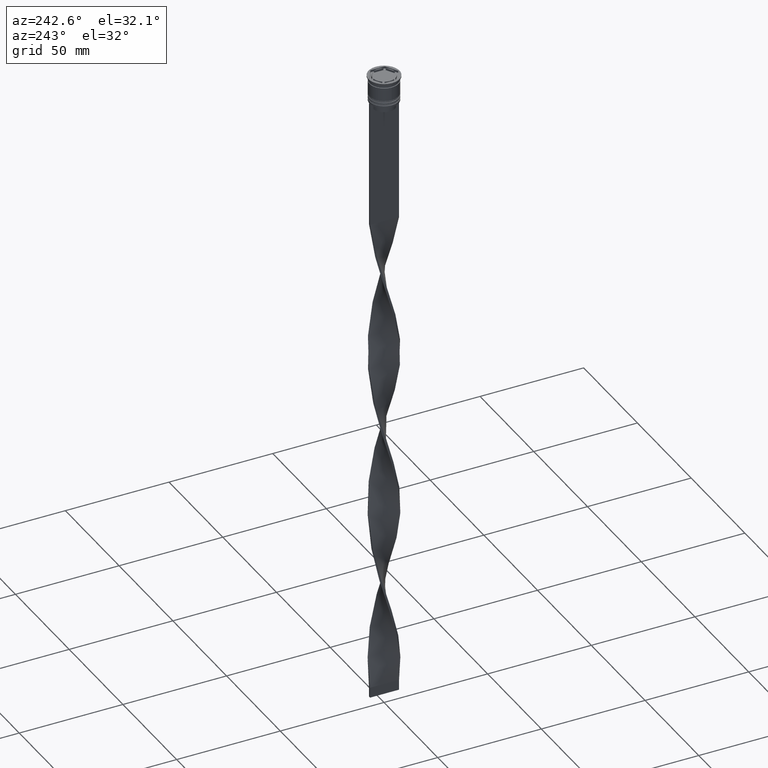
[diagram: clean part render]
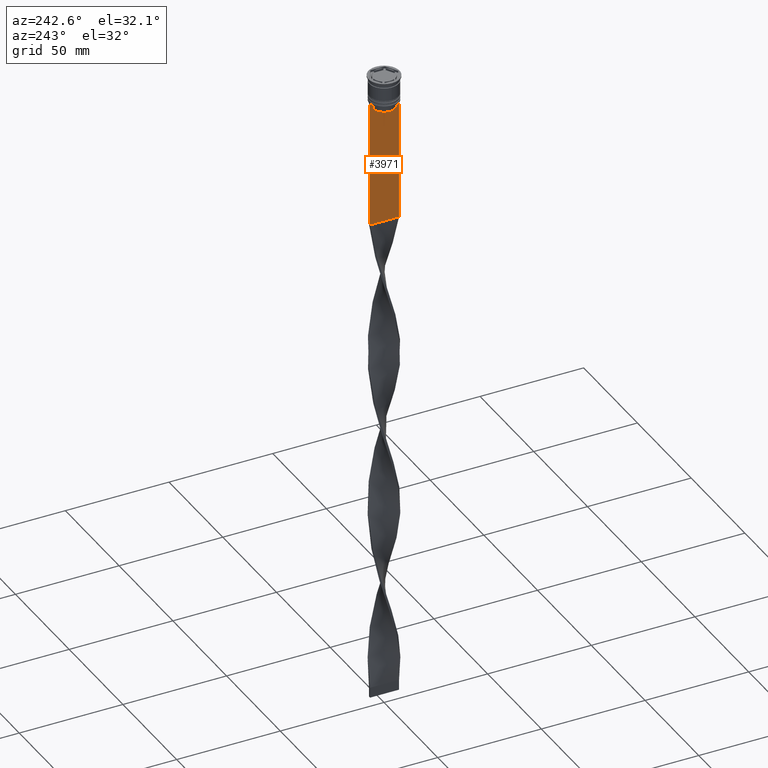
[diagram: same view with one face highlighted and labeled with its STEP entity id]
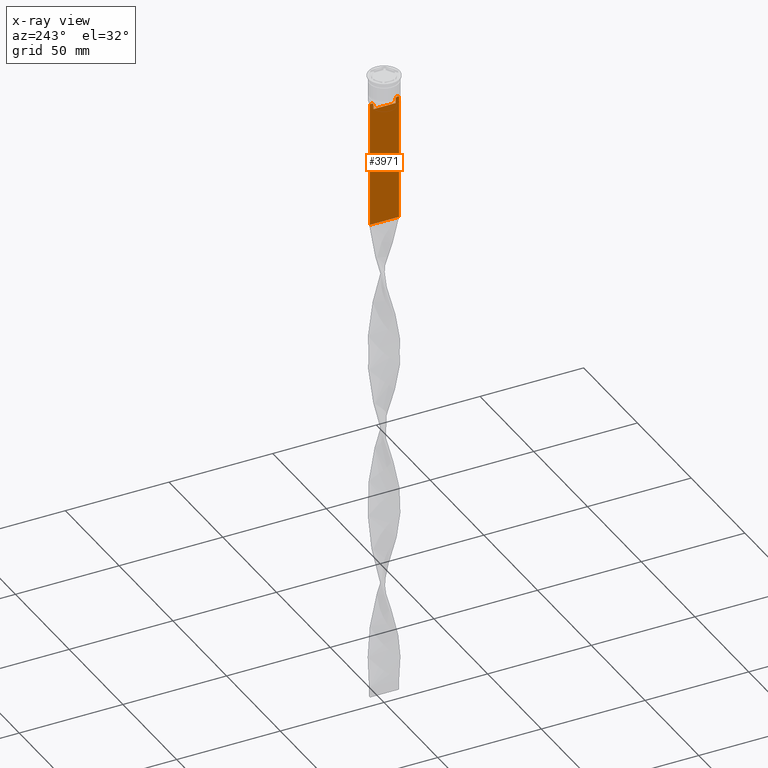
[diagram: x-ray of the same camera — body ghosted, the highlighted face saturated]
A machine part, auxiliary view. The second image highlights one B-rep face of the part: STEP entity #3971.
The next image is the same camera in x-ray: the body ghosted, the highlighted face saturated — about 0% of this face is hidden behind the body in this view.
In plain terms, the highlighted planar face has unit normal (-1, 0, 0).
Its self-contained STEP definition (entity closure, byte-faithful):
#54 = VERTEX_POINT ( 'NONE', #3921 ) ;
#164 = DIRECTION ( 'NONE',  ( 0.000000000000000000, -1.000000000000000000, 0.000000000000000000 ) ) ;
#171 = VERTEX_POINT ( 'NONE', #3525 ) ;
#210 = LINE ( 'NONE', #890, #831 ) ;
#331 = CARTESIAN_POINT ( 'NONE',  ( -0.5000000000000000000, 5.711478846560141598, -12.66669470477064685 ) ) ;
#396 = LINE ( 'NONE', #2629, #1815 ) ;
#433 = B_SPLINE_CURVE_WITH_KNOTS ( 'NONE', 3,
 ( #3967, #2666, #438, #1453 ),
 .UNSPECIFIED., .F., .F.,
 ( 4, 4 ),
 ( 0.02539176325380714666, 0.02610162431828674801 ),
 .UNSPECIFIED. ) ;
#438 = CARTESIAN_POINT ( 'NONE',  ( -0.5000000000000000000, -5.711478856069293286, -12.66669469529570335 ) ) ;
#470 = LINE ( 'NONE', #1128, #2357 ) ;
#507 = DIRECTION ( 'NONE',  ( 0.000000000000000000, 0.000000000000000000, 1.000000000000000000 ) ) ;
#642 = EDGE_CURVE ( 'NONE', #4035, #913, #4027, .T. ) ;
#688 = CARTESIAN_POINT ( 'NONE',  ( -0.5000000000000000000, -5.878775382679629402, -12.50000000000000000 ) ) ;
#725 = ORIENTED_EDGE ( 'NONE', *, *, #1438, .F. ) ;
#754 = CARTESIAN_POINT ( 'NONE',  ( -0.5000000000000000000, -5.376802023508029826, 0.000000000000000000 ) ) ;
#761 = VECTOR ( 'NONE', #2016, 1000.000000000000000 ) ;
#794 = CARTESIAN_POINT ( 'NONE',  ( -0.5000000000000000000, -6.999999999999997335, -12.50000000000000000 ) ) ;
#812 = CARTESIAN_POINT ( 'NONE',  ( -0.5000000000000000000, -6.999999999999997335, -12.50000000000000000 ) ) ;
#831 = VECTOR ( 'NONE', #3425, 1000.000000000000000 ) ;
#866 = LINE ( 'NONE', #1792, #2477 ) ;
#882 = B_SPLINE_CURVE_WITH_KNOTS ( 'NONE', 3,
 ( #1897, #331, #3433, #3170 ),
 .UNSPECIFIED., .F., .F.,
 ( 4, 4 ),
 ( 0.01003009312103698807, 0.01073859663834952557 ),
 .UNSPECIFIED. ) ;
#890 = CARTESIAN_POINT ( 'NONE',  ( -0.5000000000000000000, -6.999999999999997335, 1.535668847618198329 ) ) ;
#913 = VERTEX_POINT ( 'NONE', #2586 ) ;
#1106 = ORIENTED_EDGE ( 'NONE', *, *, #1390, .F. ) ;
#1108 = LINE ( 'NONE', #794, #2669 ) ;
#1128 = CARTESIAN_POINT ( 'NONE',  ( -0.5000000000000000000, -6.999999999999997335, -73.50000000000001421 ) ) ;
#1188 = CARTESIAN_POINT ( 'NONE',  ( -0.5000000000000000000, 7.000000000000002665, 1.535668847618198329 ) ) ;
#1238 = CARTESIAN_POINT ( 'NONE',  ( -0.5000000000000000000, -6.881860213634102053, -12.50000000000000000 ) ) ;
#1244 = EDGE_CURVE ( 'NONE', #1572, #3395, #210, .T. ) ;
#1339 = EDGE_CURVE ( 'NONE', #3395, #913, #470, .T. ) ;
#1390 = EDGE_CURVE ( 'NONE', #4035, #3122, #4002, .T. ) ;
#1438 = EDGE_CURVE ( 'NONE', #171, #2060, #433, .T. ) ;
#1453 = CARTESIAN_POINT ( 'NONE',  ( -0.5000000000000000000, -5.878775382679629402, -12.50000000000000000 ) ) ;
#1472 = CARTESIAN_POINT ( 'NONE',  ( -0.5000000000000000000, -6.999999999999997335, -12.50000000000000000 ) ) ;
#1572 = VERTEX_POINT ( 'NONE', #1472 ) ;
#1597 = VERTEX_POINT ( 'NONE', #3028 ) ;
#1757 = EDGE_CURVE ( 'NONE', #3154, #54, #882, .T. ) ;
#1767 = ORIENTED_EDGE ( 'NONE', *, *, #3993, .F. ) ;
#1792 = CARTESIAN_POINT ( 'NONE',  ( -0.5000000000000000000, -6.999999999999997335, -12.50000000000000000 ) ) ;
#1815 = VECTOR ( 'NONE', #2311, 1000.000000000000000 ) ;
#1839 = ORIENTED_EDGE ( 'NONE', *, *, #1339, .F. ) ;
#1897 = CARTESIAN_POINT ( 'NONE',  ( -0.5000000000000000000, 5.878775382679629402, -12.50000000000000000 ) ) ;
#1926 = EDGE_LOOP ( 'NONE', ( #2838, #2417, #1106, #3648, #1839, #2896, #1767, #1983, #725, #3546, #2649, #4013 ) ) ;
#1983 = ORIENTED_EDGE ( 'NONE', *, *, #3391, .F. ) ;
#2016 = DIRECTION ( 'NONE',  ( -0.000000000000000000, -0.000000000000000000, 1.000000000000000000 ) ) ;
#2032 = CARTESIAN_POINT ( 'NONE',  ( -0.5000000000000000000, 7.000000000000002665, -12.50000000000000000 ) ) ;
#2049 = CARTESIAN_POINT ( 'NONE',  ( -0.5000000000000000000, -6.999999999999997335, -12.50000000000000000 ) ) ;
#2057 = CARTESIAN_POINT ( 'NONE',  ( -0.5000000000000000000, 5.376802023508029826, 0.000000000000000000 ) ) ;
#2060 = VERTEX_POINT ( 'NONE', #688 ) ;
#2071 = CARTESIAN_POINT ( 'NONE',  ( -0.5000000000000000000, 5.878775382679629402, -12.50000000000000000 ) ) ;
#2194 = EDGE_CURVE ( 'NONE', #3122, #3154, #866, .T. ) ;
#2223 = VECTOR ( 'NONE', #2722, 1000.000000000000000 ) ;
#2311 = DIRECTION ( 'NONE',  ( 0.000000000000000000, -1.000000000000000000, 0.000000000000000000 ) ) ;
#2336 = LINE ( 'NONE', #2057, #2413 ) ;
#2345 = DIRECTION ( 'NONE',  ( 0.000000000000000000, -1.000000000000000000, 0.000000000000000000 ) ) ;
#2357 = VECTOR ( 'NONE', #2739, 1000.000000000000000 ) ;
#2386 = PLANE ( 'NONE',  #2453 ) ;
#2413 = VECTOR ( 'NONE', #3301, 1000.000000000000000 ) ;
#2417 = ORIENTED_EDGE ( 'NONE', *, *, #2194, .F. ) ;
#2444 = DIRECTION ( 'NONE',  ( 0.000000000000000000, 0.000000000000000000, -1.000000000000000000 ) ) ;
#2453 = AXIS2_PLACEMENT_3D ( 'NONE', #3626, #3675, #507 ) ;
#2477 = VECTOR ( 'NONE', #2757, 1000.000000000000000 ) ;
#2586 = CARTESIAN_POINT ( 'NONE',  ( -0.5000000000000000000, 7.000000000000002665, -73.50000000000001421 ) ) ;
#2629 = CARTESIAN_POINT ( 'NONE',  ( -0.5000000000000000000, 5.400000000000003908, -15.50000000000000000 ) ) ;
#2649 = ORIENTED_EDGE ( 'NONE', *, *, #2989, .F. ) ;
#2666 = CARTESIAN_POINT ( 'NONE',  ( -0.5000000000000000000, -5.544156999454441959, -12.83336396790503642 ) ) ;
#2669 = VECTOR ( 'NONE', #2345, 1000.000000000000000 ) ;
#2706 = CARTESIAN_POINT ( 'NONE',  ( -0.5000000000000000000, -6.999999999999997335, -73.50000000000001421 ) ) ;
#2722 = DIRECTION ( 'NONE',  ( 0.000000000000000000, -1.000000000000000000, 0.000000000000000000 ) ) ;
#2739 = DIRECTION ( 'NONE',  ( 0.000000000000000000, 1.000000000000000000, 0.000000000000000000 ) ) ;
#2757 = DIRECTION ( 'NONE',  ( 0.000000000000000000, -1.000000000000000000, 0.000000000000000000 ) ) ;
#2803 = EDGE_CURVE ( 'NONE', #54, #1597, #2336, .T. ) ;
#2838 = ORIENTED_EDGE ( 'NONE', *, *, #1757, .F. ) ;
#2895 = VECTOR ( 'NONE', #2444, 1000.000000000000000 ) ;
#2896 = ORIENTED_EDGE ( 'NONE', *, *, #1244, .F. ) ;
#2933 = EDGE_CURVE ( 'NONE', #3042, #171, #3253, .T. ) ;
#2989 = EDGE_CURVE ( 'NONE', #1597, #3042, #396, .T. ) ;
#3028 = CARTESIAN_POINT ( 'NONE',  ( -0.5000000000000000000, 5.376802023508029826, -15.50000000000000000 ) ) ;
#3042 = VERTEX_POINT ( 'NONE', #4026 ) ;
#3122 = VERTEX_POINT ( 'NONE', #3409 ) ;
#3154 = VERTEX_POINT ( 'NONE', #2071 ) ;
#3170 = CARTESIAN_POINT ( 'NONE',  ( -0.5000000000000000000, 5.376802023508029826, -13.00000000000000178 ) ) ;
#3253 = LINE ( 'NONE', #754, #761 ) ;
#3301 = DIRECTION ( 'NONE',  ( 0.000000000000000000, 0.000000000000000000, -1.000000000000000000 ) ) ;
#3345 = LINE ( 'NONE', #2049, #2223 ) ;
#3391 = EDGE_CURVE ( 'NONE', #2060, #3652, #3345, .T. ) ;
#3395 = VERTEX_POINT ( 'NONE', #2706 ) ;
#3409 = CARTESIAN_POINT ( 'NONE',  ( -0.5000000000000000000, 6.881860213634102053, -12.50000000000000000 ) ) ;
#3425 = DIRECTION ( 'NONE',  ( 0.000000000000000000, 0.000000000000000000, -1.000000000000000000 ) ) ;
#3433 = CARTESIAN_POINT ( 'NONE',  ( -0.5000000000000000000, 5.544156989057553275, -12.83336397825725861 ) ) ;
#3505 = FACE_OUTER_BOUND ( 'NONE', #1926, .T. ) ;
#3525 = CARTESIAN_POINT ( 'NONE',  ( -0.5000000000000000000, -5.376802023508029826, -13.00000000000000178 ) ) ;
#3546 = ORIENTED_EDGE ( 'NONE', *, *, #2933, .F. ) ;
#3626 = CARTESIAN_POINT ( 'NONE',  ( -0.5000000000000000000, -6.999999999999997335, 1.535668847618198329 ) ) ;
#3648 = ORIENTED_EDGE ( 'NONE', *, *, #642, .T. ) ;
#3652 = VERTEX_POINT ( 'NONE', #1238 ) ;
#3675 = DIRECTION ( 'NONE',  ( -1.000000000000000000, 0.000000000000000000, 0.000000000000000000 ) ) ;
#3889 = VECTOR ( 'NONE', #164, 1000.000000000000000 ) ;
#3921 = CARTESIAN_POINT ( 'NONE',  ( -0.5000000000000000000, 5.376802023508029826, -13.00000000000000178 ) ) ;
#3967 = CARTESIAN_POINT ( 'NONE',  ( -0.5000000000000000000, -5.376802023508029826, -13.00000000000000178 ) ) ;
#3971 = ADVANCED_FACE ( 'NONE', ( #3505 ), #2386, .T. ) ;
#3993 = EDGE_CURVE ( 'NONE', #3652, #1572, #1108, .T. ) ;
#4002 = LINE ( 'NONE', #812, #3889 ) ;
#4013 = ORIENTED_EDGE ( 'NONE', *, *, #2803, .F. ) ;
#4026 = CARTESIAN_POINT ( 'NONE',  ( -0.5000000000000000000, -5.376802023508029826, -15.50000000000000000 ) ) ;
#4027 = LINE ( 'NONE', #1188, #2895 ) ;
#4035 = VERTEX_POINT ( 'NONE', #2032 ) ;